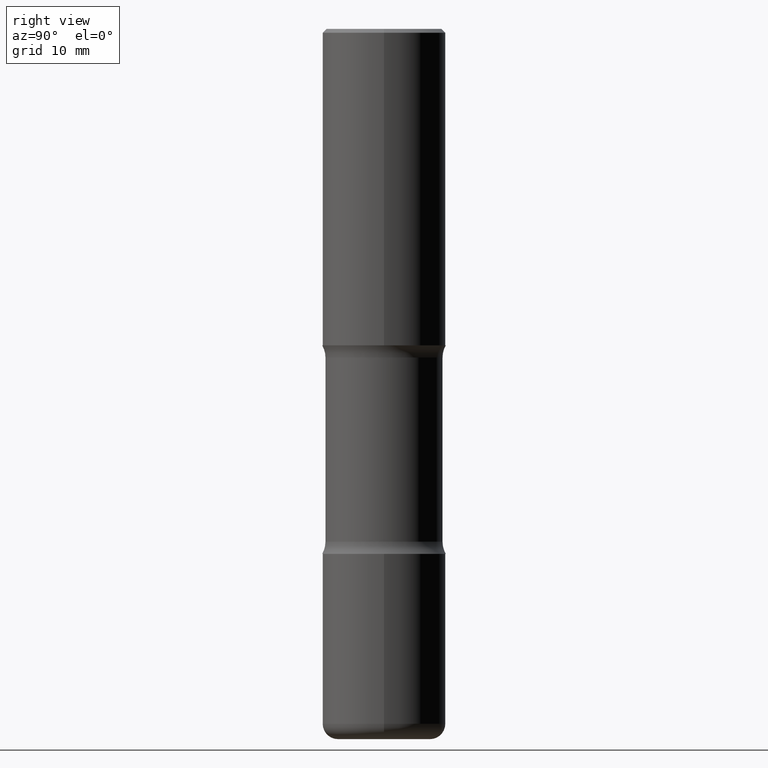
[diagram: clean part render]
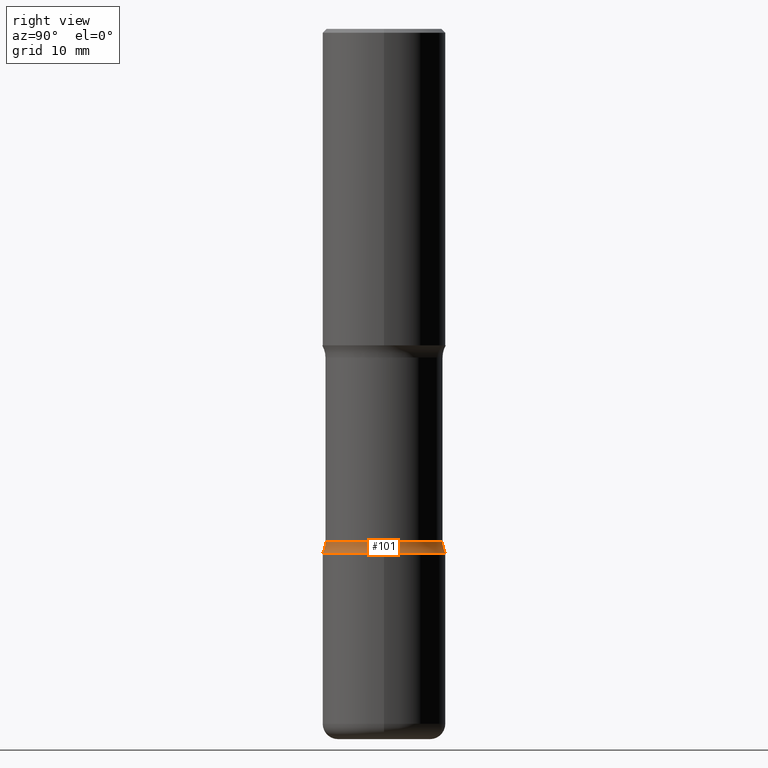
[diagram: same view with one face highlighted and labeled with its STEP entity id]
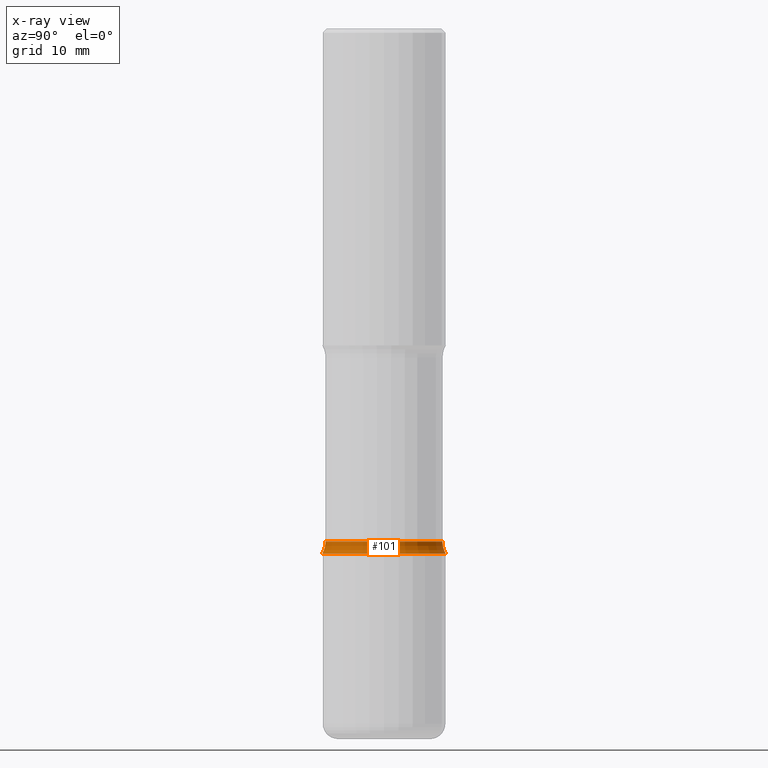
[diagram: x-ray of the same camera — body ghosted, the highlighted face saturated]
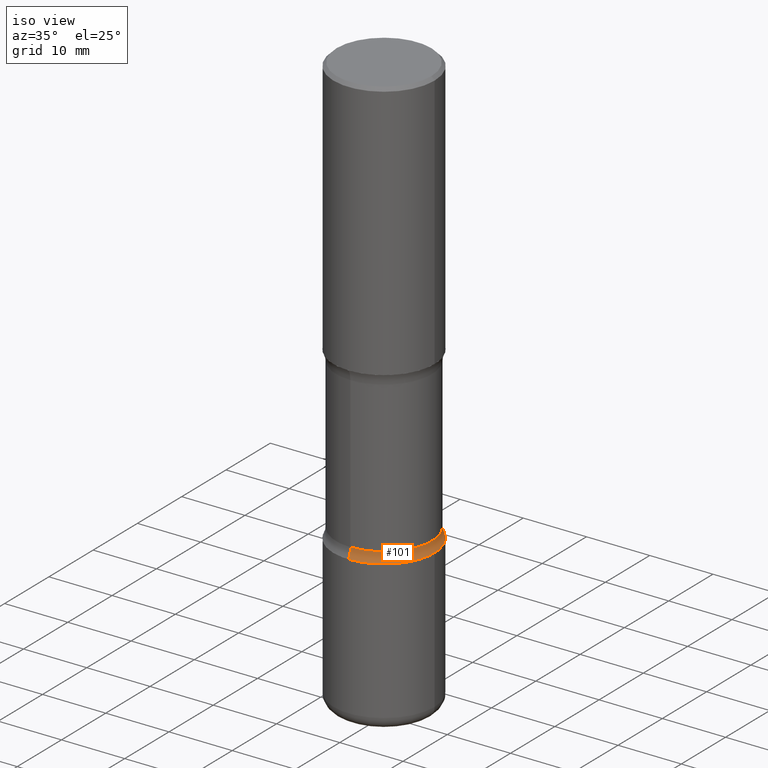
[diagram: same view with one face highlighted and labeled with its STEP entity id]
A machine part, right view. The second image highlights one B-rep face of the part: STEP entity #101.
The next image is the same camera in x-ray: the body ghosted, the highlighted face saturated — about 0% of this face is hidden behind the body in this view.
A second angle (iso view) of the same face is appended — the face is thin or edge-on in the first view.
In plain terms, the highlighted toroidal blend (fillet) surface has major radius 10.7569 mm and minor (blend) radius 3.175 mm.
Its self-contained STEP definition (entity closure, byte-faithful):
#2 = ORIENTED_EDGE ( 'NONE', *, *, #230, .F. ) ;
#3 = EDGE_CURVE ( 'NONE', #49, #341, #389, .T. ) ;
#6 = AXIS2_PLACEMENT_3D ( 'NONE', #437, #534, #66 ) ;
#24 = DIRECTION ( 'NONE',  ( 2.470630472966402250E-29, -3.455448399899237676E-15, -1.000000000000000000 ) ) ;
#25 = EDGE_CURVE ( 'NONE', #341, #86, #509, .T. ) ;
#46 = TOROIDAL_SURFACE ( 'NONE', #433, 0.4235000000000000986, 0.1250000000000000278 ) ;
#49 = VERTEX_POINT ( 'NONE', #67 ) ;
#60 = DIRECTION ( 'NONE',  ( 6.982962677686265922E-15, 1.000000000000000000, -3.660767830705880744E-15 ) ) ;
#63 = DIRECTION ( 'NONE',  ( -1.000000000000000000, 6.982962677686265922E-15, -4.883557194083112340E-29 ) ) ;
#66 = DIRECTION ( 'NONE',  ( 6.860497997771529985E-15, 1.000000000000000000, 0.000000000000000000 ) ) ;
#67 = CARTESIAN_POINT ( 'NONE',  ( 2.199284095337355741E-15, 0.3149499999999907374, -2.677100000000002034 ) ) ;
#86 = VERTEX_POINT ( 'NONE', #136 ) ;
#87 = ORIENTED_EDGE ( 'NONE', *, *, #3, .T. ) ;
#101 = ADVANCED_FACE ( 'NONE', ( #316 ), #46, .F. ) ;
#104 = CIRCLE ( 'NONE', #176, 0.3149500000000001743 ) ;
#109 = DIRECTION ( 'NONE',  ( 2.470630472966402250E-29, -3.455448399899237676E-15, -1.000000000000000000 ) ) ;
#136 = CARTESIAN_POINT ( 'NONE',  ( -2.104286248366408700E-15, -0.2985000000000090914, -2.615116957964294109 ) ) ;
#176 = AXIS2_PLACEMENT_3D ( 'NONE', #505, #374, #330 ) ;
#197 = CARTESIAN_POINT ( 'NONE',  ( -2.160713844398079465E-15, -0.3149500000000095556, -2.677099999999999813 ) ) ;
#219 = AXIS2_PLACEMENT_3D ( 'NONE', #501, #63, #313 ) ;
#228 = CIRCLE ( 'NONE', #6, 0.1250000000000000278 ) ;
#230 = EDGE_CURVE ( 'NONE', #304, #86, #228, .T. ) ;
#232 = DIRECTION ( 'NONE',  ( 6.982962677686265922E-15, 1.000000000000000000, -3.455448399899237676E-15 ) ) ;
#304 = VERTEX_POINT ( 'NONE', #197 ) ;
#313 = DIRECTION ( 'NONE',  ( -6.982962677686265133E-15, -1.000000000000000000, 0.000000000000000000 ) ) ;
#316 = FACE_OUTER_BOUND ( 'NONE', #468, .T. ) ;
#330 = DIRECTION ( 'NONE',  ( 6.982962677686264344E-15, 1.000000000000000000, -3.469564049740291192E-15 ) ) ;
#341 = VERTEX_POINT ( 'NONE', #366 ) ;
#366 = CARTESIAN_POINT ( 'NONE',  ( 2.084414359289414101E-15, 0.2984999999999908282, -2.615116957964296329 ) ) ;
#374 = DIRECTION ( 'NONE',  ( 2.470630472966402250E-29, -3.455448399899237676E-15, -1.000000000000000000 ) ) ;
#382 = ORIENTED_EDGE ( 'NONE', *, *, #471, .F. ) ;
#389 = CIRCLE ( 'NONE', #219, 0.1250000000000000278 ) ;
#425 = AXIS2_PLACEMENT_3D ( 'NONE', #489, #24, #60 ) ;
#431 = ORIENTED_EDGE ( 'NONE', *, *, #25, .T. ) ;
#433 = AXIS2_PLACEMENT_3D ( 'NONE', #495, #109, #232 ) ;
#437 = CARTESIAN_POINT ( 'NONE',  ( -2.905420902056180170E-15, -0.4235000000000093134, -2.615116957964293665 ) ) ;
#468 = EDGE_LOOP ( 'NONE', ( #2, #382, #87, #431 ) ) ;
#471 = EDGE_CURVE ( 'NONE', #49, #304, #104, .T. ) ;
#489 = CARTESIAN_POINT ( 'NONE',  ( 6.393627348577659776E-29, -9.132865488793823452E-15, -2.615116957964295441 ) ) ;
#495 = CARTESIAN_POINT ( 'NONE',  ( 6.347495963775277280E-29, -9.198928257466199369E-15, -2.615116957964295441 ) ) ;
#501 = CARTESIAN_POINT ( 'NONE',  ( 2.957284694000197834E-15, 0.4234999999999908282, -2.615116957964296773 ) ) ;
#505 = CARTESIAN_POINT ( 'NONE',  ( 6.546764541038231284E-29, -9.347044692216987539E-15, -2.677100000000000701 ) ) ;
#509 = CIRCLE ( 'NONE', #425, 0.2984999999999999876 ) ;
#534 = DIRECTION ( 'NONE',  ( 1.000000000000000000, -6.860497997771530774E-15, 4.841240155857558238E-29 ) ) ;